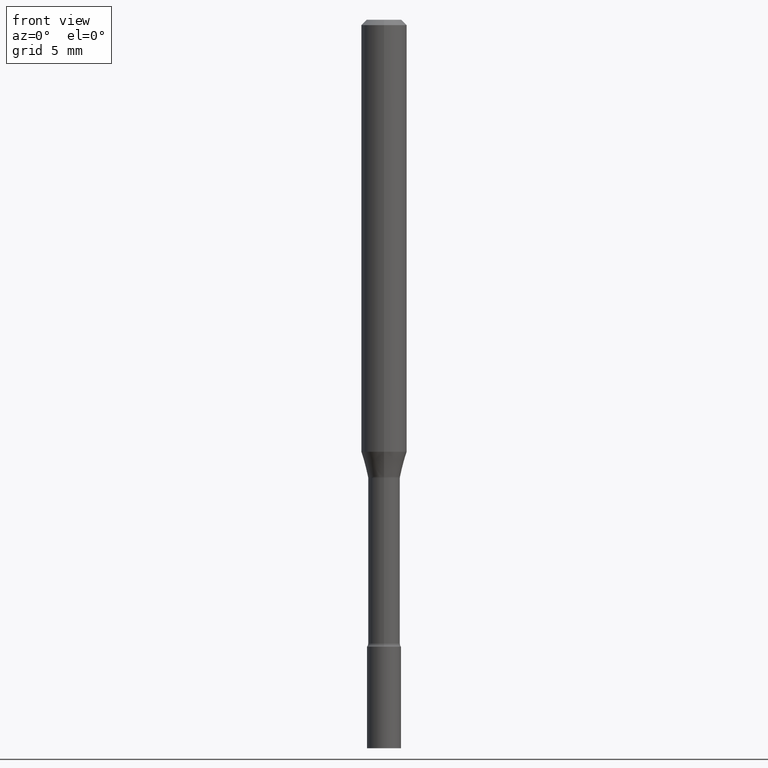
[diagram: clean part render]
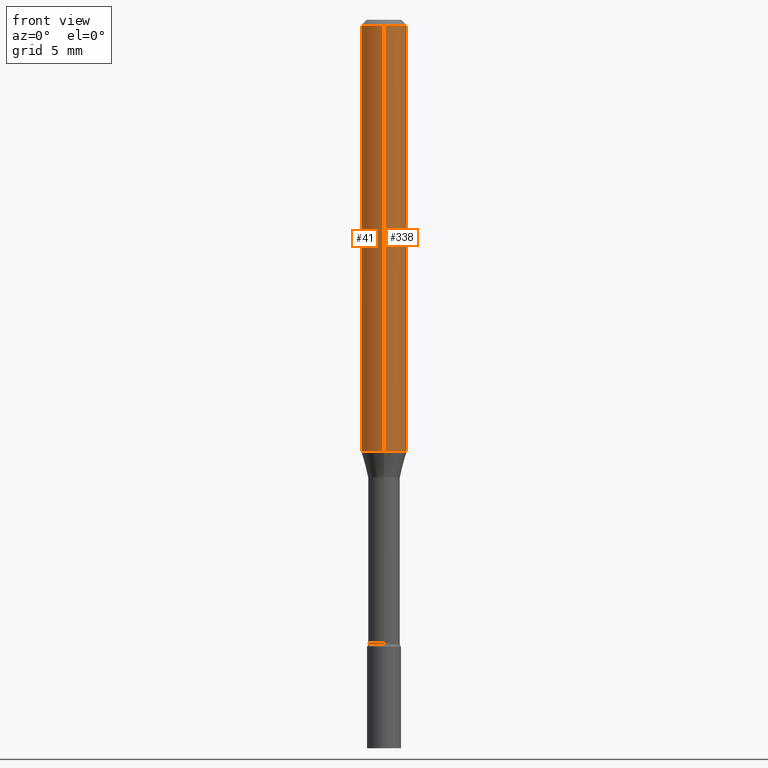
[diagram: same view with one multi-face feature highlighted, each face labeled with its STEP entity id]
A machine part, front view. The highlighted faces form ONE feature: a constant-radius fillet chain: 2 tangent blend faces with common blend radius 1.5875 mm. The faces share edges in the B-rep.
Their STEP definitions:
[1] entity #338 (Cylinder):
#27 = FACE_OUTER_BOUND ( 'NONE', #138, .T. ) ;
#36 = EDGE_CURVE ( 'NONE', #191, #417, #405, .T. ) ;
#37 = CIRCLE ( 'NONE', #328, 0.06250000000000000000 ) ;
#55 = CARTESIAN_POINT ( 'NONE',  ( 4.440892098500625669E-16, 0.06250000000000000000, -2.182165290832089869E-16 ) ) ;
#90 = DIRECTION ( 'NONE',  ( -2.445480588895451802E-29, 3.491464465331343396E-15, 1.000000000000000000 ) ) ;
#108 = CARTESIAN_POINT ( 'NONE',  ( -4.364351673553912750E-16, -0.06250000000000005551, -0.01499999999999981209 ) ) ;
#109 = EDGE_CURVE ( 'NONE', #177, #325, #323, .T. ) ;
#110 = AXIS2_PLACEMENT_3D ( 'NONE', #262, #388, #379 ) ;
#121 = DIRECTION ( 'NONE',  ( -2.445480588895451802E-29, 3.491464465331343790E-15, 1.000000000000000000 ) ) ;
#134 = EDGE_CURVE ( 'NONE', #417, #325, #368, .T. ) ;
#138 = EDGE_LOOP ( 'NONE', ( #512, #403, #231, #217 ) ) ;
#168 = DIRECTION ( 'NONE',  ( -2.445480588895451802E-29, 3.491464465331343790E-15, 1.000000000000000000 ) ) ;
#176 = CARTESIAN_POINT ( 'NONE',  ( -4.364351673553623829E-16, -0.06250000000000410783, -1.185837444817704922 ) ) ;
#177 = VERTEX_POINT ( 'NONE', #466 ) ;
#191 = VERTEX_POINT ( 'NONE', #176 ) ;
#201 = CARTESIAN_POINT ( 'NONE',  ( -4.364351673553916201E-16, -0.06250000000000000000, 2.182165290832089869E-16 ) ) ;
#217 = ORIENTED_EDGE ( 'NONE', *, *, #36, .F. ) ;
#231 = ORIENTED_EDGE ( 'NONE', *, *, #134, .F. ) ;
#245 = AXIS2_PLACEMENT_3D ( 'NONE', #452, #168, #285 ) ;
#251 = EDGE_CURVE ( 'NONE', #191, #177, #37, .T. ) ;
#262 = CARTESIAN_POINT ( 'NONE',  ( 0.000000000000000000, 0.000000000000000000, 0.000000000000000000 ) ) ;
#285 = DIRECTION ( 'NONE',  ( -6.982962677686265922E-15, -1.000000000000000000, 3.483106191921935554E-15 ) ) ;
#300 = DIRECTION ( 'NONE',  ( -6.982962677686265922E-15, -1.000000000000000000, 4.370956789862821150E-15 ) ) ;
#311 = VECTOR ( 'NONE', #90, 39.37007874015748143 ) ;
#323 = LINE ( 'NONE', #55, #311 ) ;
#325 = VERTEX_POINT ( 'NONE', #345 ) ;
#328 = AXIS2_PLACEMENT_3D ( 'NONE', #451, #121, #300 ) ;
#338 = ADVANCED_FACE ( 'NONE', ( #27 ), #344, .T. ) ;
#344 = CYLINDRICAL_SURFACE ( 'NONE', #110, 0.06250000000000000000 ) ;
#345 = CARTESIAN_POINT ( 'NONE',  ( 4.440892098500918040E-16, 0.06249999999999995837, -0.01500000000000024751 ) ) ;
#368 = CIRCLE ( 'NONE', #245, 0.06250000000000000000 ) ;
#379 = DIRECTION ( 'NONE',  ( -6.982962677686265922E-15, -1.000000000000000000, 3.491464465331343790E-15 ) ) ;
#388 = DIRECTION ( 'NONE',  ( -2.445480588895451802E-29, 3.491464465331343790E-15, 1.000000000000000000 ) ) ;
#403 = ORIENTED_EDGE ( 'NONE', *, *, #109, .T. ) ;
#405 = LINE ( 'NONE', #201, #410 ) ;
#410 = VECTOR ( 'NONE', #478, 39.37007874015748143 ) ;
#417 = VERTEX_POINT ( 'NONE', #108 ) ;
#451 = CARTESIAN_POINT ( 'NONE',  ( 2.899942452887079793E-29, -4.140309300240336483E-15, -1.185837444817705144 ) ) ;
#452 = CARTESIAN_POINT ( 'NONE',  ( 3.668220883343184955E-31, -5.237196697997026754E-17, -0.01500000000000003067 ) ) ;
#466 = CARTESIAN_POINT ( 'NONE',  ( 4.440892098500917054E-16, 0.06249999999999589217, -1.185837444817705588 ) ) ;
#478 = DIRECTION ( 'NONE',  ( -2.445480588895451802E-29, 3.491464465331343396E-15, 1.000000000000000000 ) ) ;
#512 = ORIENTED_EDGE ( 'NONE', *, *, #251, .T. ) ;
[2] entity #41 (Cylinder):
#14 = DIRECTION ( 'NONE',  ( -2.445480588895451802E-29, 3.491464465331343790E-15, 1.000000000000000000 ) ) ;
#36 = EDGE_CURVE ( 'NONE', #191, #417, #405, .T. ) ;
#41 = ADVANCED_FACE ( 'NONE', ( #229 ), #312, .T. ) ;
#55 = CARTESIAN_POINT ( 'NONE',  ( 4.440892098500625669E-16, 0.06250000000000000000, -2.182165290832089869E-16 ) ) ;
#71 = DIRECTION ( 'NONE',  ( -2.445480588895451802E-29, 3.491464465331343790E-15, 1.000000000000000000 ) ) ;
#90 = DIRECTION ( 'NONE',  ( -2.445480588895451802E-29, 3.491464465331343396E-15, 1.000000000000000000 ) ) ;
#93 = CIRCLE ( 'NONE', #411, 0.06250000000000000000 ) ;
#108 = CARTESIAN_POINT ( 'NONE',  ( -4.364351673553912750E-16, -0.06250000000000005551, -0.01499999999999981209 ) ) ;
#109 = EDGE_CURVE ( 'NONE', #177, #325, #323, .T. ) ;
#125 = ORIENTED_EDGE ( 'NONE', *, *, #109, .F. ) ;
#128 = EDGE_CURVE ( 'NONE', #177, #191, #208, .T. ) ;
#146 = DIRECTION ( 'NONE',  ( -6.982962677686265922E-15, -1.000000000000000000, 3.483106191921935554E-15 ) ) ;
#176 = CARTESIAN_POINT ( 'NONE',  ( -4.364351673553623829E-16, -0.06250000000000410783, -1.185837444817704922 ) ) ;
#177 = VERTEX_POINT ( 'NONE', #466 ) ;
#186 = CARTESIAN_POINT ( 'NONE',  ( 0.000000000000000000, 0.000000000000000000, 0.000000000000000000 ) ) ;
#191 = VERTEX_POINT ( 'NONE', #176 ) ;
#201 = CARTESIAN_POINT ( 'NONE',  ( -4.364351673553916201E-16, -0.06250000000000000000, 2.182165290832089869E-16 ) ) ;
#208 = CIRCLE ( 'NONE', #376, 0.06250000000000000000 ) ;
#229 = FACE_OUTER_BOUND ( 'NONE', #339, .T. ) ;
#240 = DIRECTION ( 'NONE',  ( -6.982962677686265922E-15, -1.000000000000000000, 4.370956789862821150E-15 ) ) ;
#267 = AXIS2_PLACEMENT_3D ( 'NONE', #186, #306, #400 ) ;
#306 = DIRECTION ( 'NONE',  ( -2.445480588895451802E-29, 3.491464465331343790E-15, 1.000000000000000000 ) ) ;
#311 = VECTOR ( 'NONE', #90, 39.37007874015748143 ) ;
#312 = CYLINDRICAL_SURFACE ( 'NONE', #267, 0.06250000000000000000 ) ;
#323 = LINE ( 'NONE', #55, #311 ) ;
#325 = VERTEX_POINT ( 'NONE', #345 ) ;
#332 = CARTESIAN_POINT ( 'NONE',  ( 2.899942452887079793E-29, -4.140309300240336483E-15, -1.185837444817705144 ) ) ;
#335 = ORIENTED_EDGE ( 'NONE', *, *, #128, .T. ) ;
#339 = EDGE_LOOP ( 'NONE', ( #125, #335, #491, #472 ) ) ;
#345 = CARTESIAN_POINT ( 'NONE',  ( 4.440892098500918040E-16, 0.06249999999999995837, -0.01500000000000024751 ) ) ;
#361 = EDGE_CURVE ( 'NONE', #325, #417, #93, .T. ) ;
#376 = AXIS2_PLACEMENT_3D ( 'NONE', #332, #14, #240 ) ;
#378 = CARTESIAN_POINT ( 'NONE',  ( 3.668220883343184955E-31, -5.237196697997026754E-17, -0.01500000000000003067 ) ) ;
#400 = DIRECTION ( 'NONE',  ( -6.982962677686265922E-15, -1.000000000000000000, 3.491464465331343790E-15 ) ) ;
#405 = LINE ( 'NONE', #201, #410 ) ;
#410 = VECTOR ( 'NONE', #478, 39.37007874015748143 ) ;
#411 = AXIS2_PLACEMENT_3D ( 'NONE', #378, #71, #146 ) ;
#417 = VERTEX_POINT ( 'NONE', #108 ) ;
#466 = CARTESIAN_POINT ( 'NONE',  ( 4.440892098500917054E-16, 0.06249999999999589217, -1.185837444817705588 ) ) ;
#472 = ORIENTED_EDGE ( 'NONE', *, *, #361, .F. ) ;
#478 = DIRECTION ( 'NONE',  ( -2.445480588895451802E-29, 3.491464465331343396E-15, 1.000000000000000000 ) ) ;
#491 = ORIENTED_EDGE ( 'NONE', *, *, #36, .T. ) ;